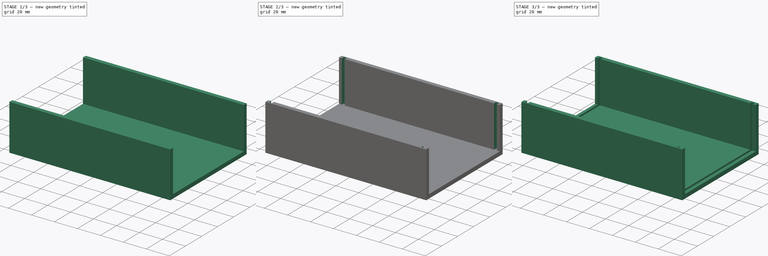
[diagram: build sequence overview — one tinted view per stage of 3, left to right]
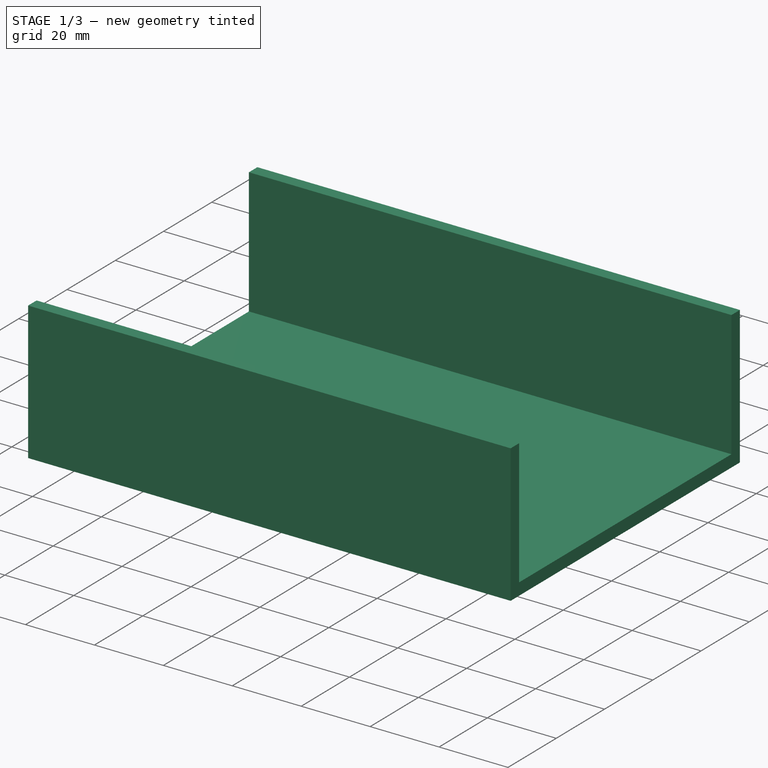
[diagram: stage 1 of 3 — iso view after this stage's code; geometry added in this stage tinted green]
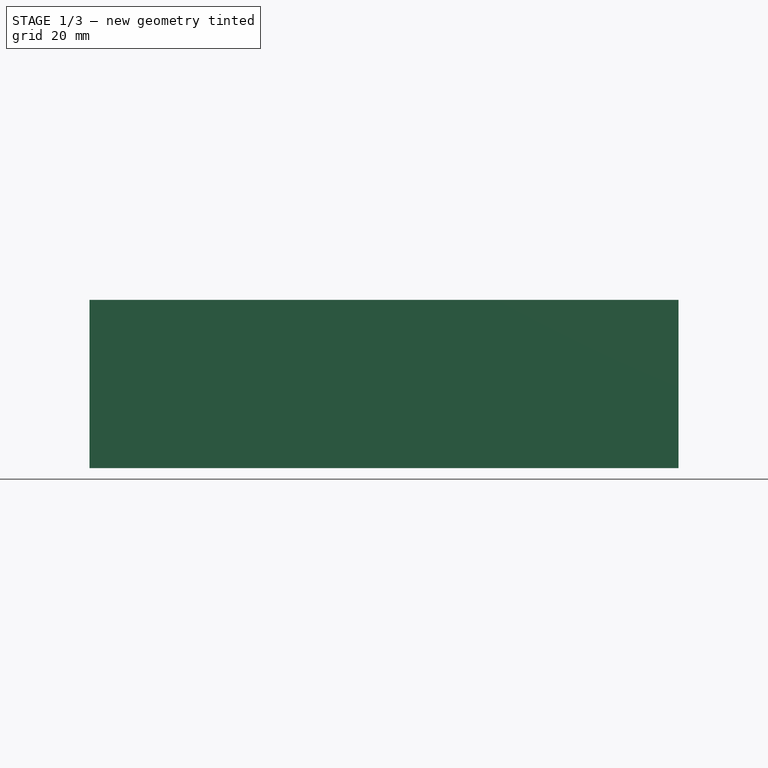
[diagram: stage 1 of 3 — front view after this stage's code; geometry added in this stage tinted green]
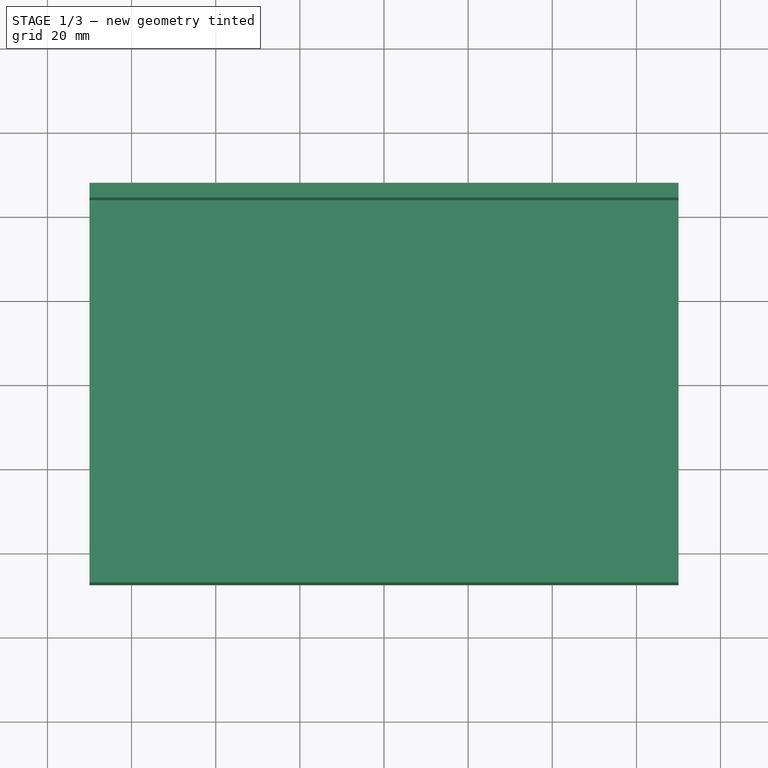
[diagram: stage 1 of 3 — top view after this stage's code; geometry added in this stage tinted green]
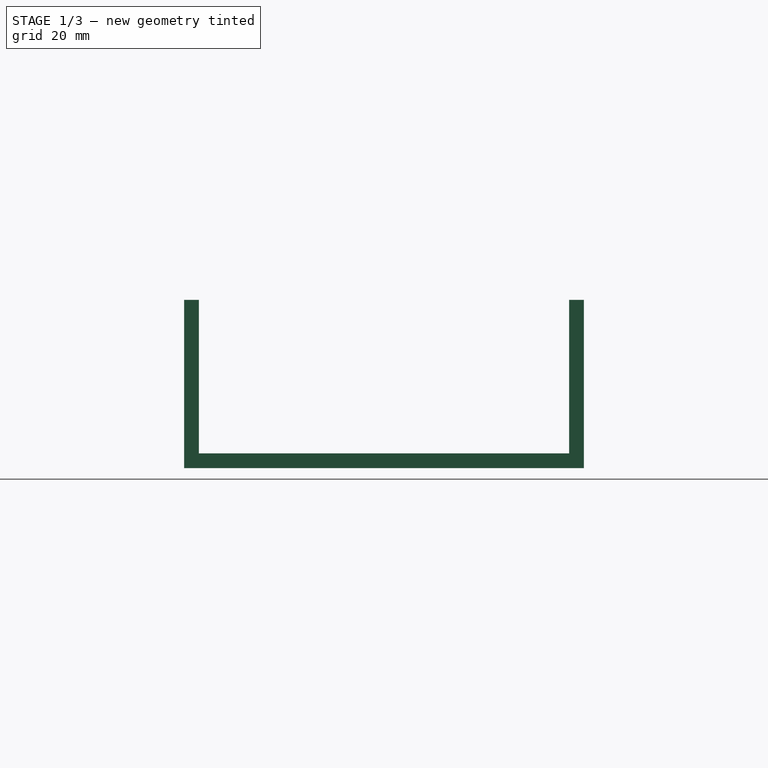
[diagram: stage 1 of 3 — right view after this stage's code; geometry added in this stage tinted green]
FCSTD DOCUMENT  (FreeCAD 0.20R29410 (Git))
Label: HotAirBox
License: All rights reserved
LicenseURL: http://en.wikipedia.org/wiki/All_rights_reserved
objects: Sketcher::SketchObject×6, PartDesign::Pad×4, PartDesign::Body×3, PartDesign::Pocket×2, App::Part×2, Spreadsheet::Sheet×1
note: 21 computed .brp shape members not serialized (recipe doc carries the construction recipe); baked Part::Feature solids carry a one-line shape summary decoded from their .brp

FEATURE [PartDesign::Body] Body002  label="BodyTop001"
  Group = -> [Sketch003,Pad001,Sketch005,Pocket]
  Origin = -> Origin004
  Tip = -> Pocket
FEATURE [App::Part] Part  label="Part_top"
  Group = -> [Body002]
  Origin = -> Origin
  Placement = pos=(145,0,0) rot=(0,0,1;0rad)
FEATURE [Sketcher::SketchObject] Sketch001  label="SketchBtmBase"
  FullyConstrained = true
  MapMode = 5
  Support = -> [XY_Plane003]
  expr: .Constraints.BoxLength = <<Measurements>>.BoxLength
  expr: .Constraints.BoxWith = <<Measurements>>.BoxWidth
  expr: Constraints[10] = <<Measurements>>.BoxWidth / 2
  expr: Constraints[11] = <<Measurements>>.BoxLength / 2
  sketch-geometry (4):
    g0: LineSegment StartX=-70 StartY=47.5 StartZ=0 EndX=70 EndY=47.5 EndZ=0
    g1: LineSegment StartX=-70 StartY=47.5 StartZ=0 EndX=-70 EndY=-47.5 EndZ=0
    g2: LineSegment StartX=70 StartY=47.5 StartZ=0 EndX=70 EndY=-47.5 EndZ=0
    g3: LineSegment StartX=-70 StartY=-47.5 StartZ=0 EndX=70 EndY=-47.5 EndZ=0
  constraints (12):
    c: Horizontal(g0)
    c: Vertical(g1)
    c: Vertical(g2)
    c: Horizontal(g3)
    c: Coincident(g0,g1)
    c: Coincident(g1,g3)
    c: Coincident(g3,g2)
    c: Coincident(g0,g2)
    c: DistanceX(g0,g0) = 140  'BoxLength'
    c: DistanceY(g1,g1) = 95  'BoxWith'
    c: DistanceY(g-1,g0) = 47.5
    c: DistanceX(g-1,g0) = 70
FEATURE [PartDesign::Pad] Pad002  label="Base"
  Direction = (0,0,1)
  Length = 3.5
  Length2 = 10
  Profile = -> Sketch001
  ReferenceAxis = -> Sketch001 [N_Axis]
  Reversed = true
  Type = 0
  expr: Length = <<Measurements>>.WallThickness
FEATURE [Sketcher::SketchObject] Sketch006
  FullyConstrained = true
  MapMode = 5
  Support = -> [XY_Plane003]
  expr: Constraints[10] = <<Measurements>>.BoxWidth / 2
  expr: Constraints[11] = <<Measurements>>.BoxLength / 2
  expr: Constraints[20] = <<Measurements>>.WallThickness
  expr: Constraints[21] = <<Measurements>>.BoxLength
  expr: Constraints[22] = <<Measurements>>.BoxLength / 2
  expr: Constraints[23] = <<Measurements>>.BoxWidth / 2
  expr: Constraints[8] = <<Measurements>>.BoxLength
  expr: Constraints[9] = <<Measurements>>.WallThickness
  sketch-geometry (8):
    g0: LineSegment StartX=-70 StartY=47.5 StartZ=0 EndX=70 EndY=47.5 EndZ=0
    g1: LineSegment StartX=70 StartY=47.5 StartZ=0 EndX=70 EndY=44 EndZ=0
    g2: LineSegment StartX=70 StartY=44 StartZ=0 EndX=-70 EndY=44 EndZ=0
    g3: LineSegment StartX=-70 StartY=44 StartZ=0 EndX=-70 EndY=47.5 EndZ=0
    g4: LineSegment StartX=-70 StartY=-47.5 StartZ=0 EndX=70 EndY=-47.5 EndZ=0
    g5: LineSegment StartX=70 StartY=-47.5 StartZ=0 EndX=70 EndY=-44 EndZ=0
    g6: LineSegment StartX=70 StartY=-44 StartZ=0 EndX=-70 EndY=-44 EndZ=0
    g7: LineSegment StartX=-70 StartY=-44 StartZ=0 EndX=-70 EndY=-47.5 EndZ=0
  constraints (24):
    c: Coincident(g0,g1)
    c: Coincident(g1,g2)
    c: Coincident(g2,g3)
    c: Coincident(g3,g0)
    c: Horizontal(g0)
    c: Horizontal(g2)
    c: Vertical(g1)
    c: Vertical(g3)
    c: DistanceX(g0,g0) = 140
    c: DistanceY(g3,g3) = 3.5
    c: DistanceY(g-1,g0) = 47.5
    c: DistanceX(g0,g-1) = 70
    c: Coincident(g4,g5)
    c: Coincident(g5,g6)
    c: Coincident(g6,g7)
    c: Coincident(g7,g4)
    c: Horizontal(g4)
    c: Horizontal(g6)
    c: Vertical(g5)
    c: Vertical(g7)
    c: DistanceY(g7,g7) = 3.5
    c: DistanceX(g4,g4) = 140
    c: DistanceX(g4,g-1) = 70
    c: DistanceY(g4,g-1) = 47.5
FEATURE [PartDesign::Pad] Pad003  label="Walls001"
  BaseFeature = -> Pad002
  Direction = (0,0,1)
  Length = 36.5
  Length2 = 10
  Profile = -> Sketch006
  ReferenceAxis = -> Sketch006 [N_Axis]
  Type = 0
  expr: Length = <<Measurements>>.BoxHeight / 2 - <<Measurements>>.WallThickness
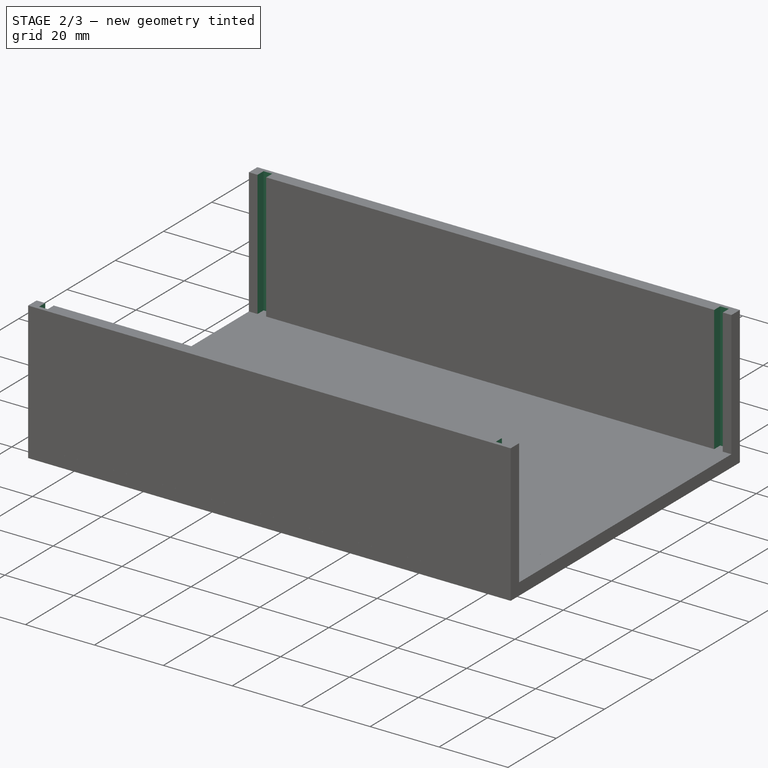
[diagram: stage 2 of 3 — iso view after this stage's code; geometry added in this stage tinted green]
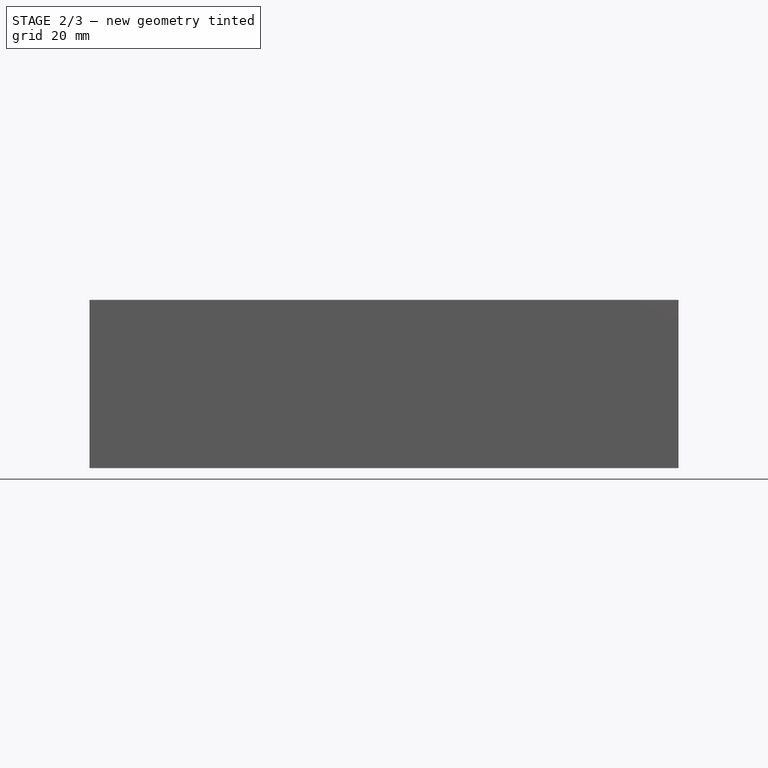
[diagram: stage 2 of 3 — front view after this stage's code; geometry added in this stage tinted green]
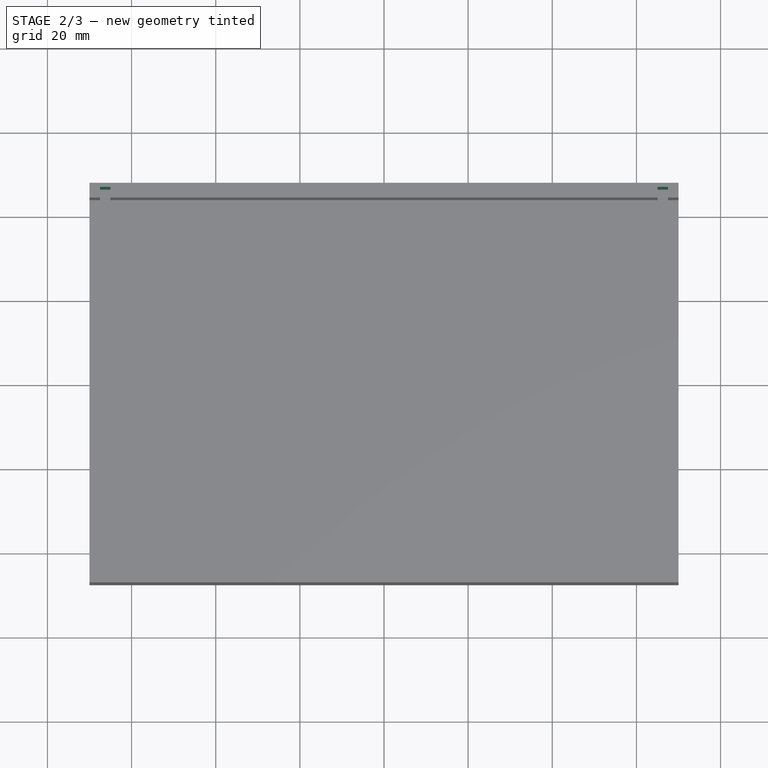
[diagram: stage 2 of 3 — top view after this stage's code; geometry added in this stage tinted green]
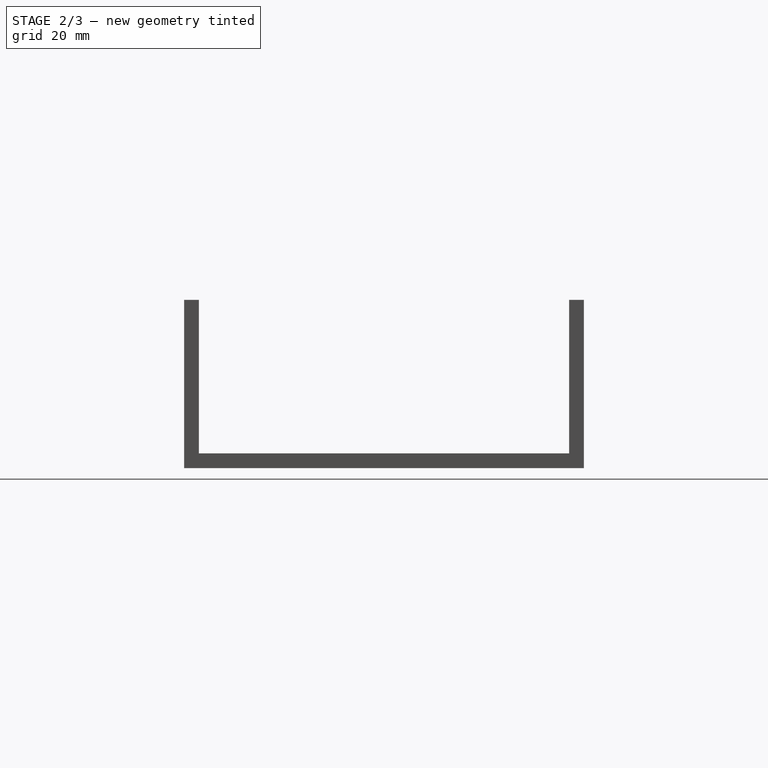
[diagram: stage 2 of 3 — right view after this stage's code; geometry added in this stage tinted green]
FEATURE [Sketcher::SketchObject] Sketch  label="SketchTopBase"
  FullyConstrained = true
  MapMode = 5
  Support = -> [XY_Plane001]
  expr: .Constraints.BoxLength = <<Measurements>>.BoxLength
  expr: .Constraints.BoxWith = <<Measurements>>.BoxWidth
  expr: Constraints[10] = <<Measurements>>.BoxWidth / 2
  expr: Constraints[11] = <<Measurements>>.BoxLength / 2
  sketch-geometry (4):
    g0: LineSegment StartX=-70 StartY=47.5 StartZ=0 EndX=70 EndY=47.5 EndZ=0
    g1: LineSegment StartX=-70 StartY=47.5 StartZ=0 EndX=-70 EndY=-47.5 EndZ=0
    g2: LineSegment StartX=70 StartY=47.5 StartZ=0 EndX=70 EndY=-47.5 EndZ=0
    g3: LineSegment StartX=-70 StartY=-47.5 StartZ=0 EndX=70 EndY=-47.5 EndZ=0
  constraints (12):
    c: Horizontal(g0)
    c: Vertical(g1)
    c: Vertical(g2)
    c: Horizontal(g3)
    c: Coincident(g0,g1)
    c: Coincident(g1,g3)
    c: Coincident(g3,g2)
    c: Coincident(g0,g2)
    c: DistanceX(g0,g0) = 140  'BoxLength'
    c: DistanceY(g1,g1) = 95  'BoxWith'
    c: DistanceY(g-1,g0) = 47.5
    c: DistanceX(g-1,g0) = 70
FEATURE [Spreadsheet::Sheet] Spreadsheet  label="Measurements"
  cells = A1=WallThickness; B1(WallThickness)=3.5; A2=PlateThickness; B2(PlateThickness)=2.5; A3=M3WallDia; B3(M3WallDia)=7; A4=M3HoleDia; B4(M3HoleDia)=3; A5=BoxLength; B5(BoxLength)=140; A6=BoxWidth; B6(BoxWidth)=95; A7=BoxHeight; B7(BoxHeight)=80; A8=PlateLength; B8(PlateLength)==BoxWidth - (WallThickness - PlateThickness) * 2; A9=PlateWidth; B9(PlateWidth)==BoxHeight - (WallThickness - PlateThickness + 1) * 2
FEATURE [PartDesign::Pad] Pad
  Direction = (0,0,1)
  Length = 3.5
  Length2 = 10
  Profile = -> Sketch
  ReferenceAxis = -> Sketch [N_Axis]
  Reversed = true
  Type = 0
  expr: Length = <<Measurements>>.WallThickness
FEATURE [Sketcher::SketchObject] Sketch007
  FullyConstrained = true
  MapMode = 5
  Placement = pos=(0,0,36.5) rot=(0,0,1;0rad)
  Support = -> [Pad003]
  expr: Constraints[10] = <<Measurements>>.BoxLength / 2 - <<Measurements>>.PlateThickness
  expr: Constraints[11] = <<Measurements>>.PlateLength / 2
  expr: Constraints[20] = <<Measurements>>.PlateThickness
  expr: Constraints[21] = <<Measurements>>.PlateLength
  expr: Constraints[22] = <<Measurements>>.BoxLength / 2 - <<Measurements>>.PlateThickness
  expr: Constraints[23] = <<Measurements>>.PlateLength / 2
  expr: Constraints[8] = <<Measurements>>.PlateThickness
  expr: Constraints[9] = <<Measurements>>.PlateLength
  sketch-geometry (8):
    g0: LineSegment StartX=-67.5 StartY=46.5 StartZ=0 EndX=-65 EndY=46.5 EndZ=0
    g1: LineSegment StartX=-65 StartY=46.5 StartZ=0 EndX=-65 EndY=-46.5 EndZ=0
    g2: LineSegment StartX=-65 StartY=-46.5 StartZ=0 EndX=-67.5 EndY=-46.5 EndZ=0
    g3: LineSegment StartX=-67.5 StartY=-46.5 StartZ=0 EndX=-67.5 EndY=46.5 EndZ=0
    g4: LineSegment StartX=67.5 StartY=46.5 StartZ=0 EndX=65 EndY=46.5 EndZ=0
    g5: LineSegment StartX=65 StartY=46.5 StartZ=0 EndX=65 EndY=-46.5 EndZ=0
    g6: LineSegment StartX=65 StartY=-46.5 StartZ=0 EndX=67.5 EndY=-46.5 EndZ=0
    g7: LineSegment StartX=67.5 StartY=-46.5 StartZ=0 EndX=67.5 EndY=46.5 EndZ=0
  constraints (24):
    c: Coincident(g0,g1)
    c: Coincident(g1,g2)
    c: Coincident(g2,g3)
    c: Coincident(g3,g0)
    c: Horizontal(g0)
    c: Horizontal(g2)
    c: Vertical(g1)
    c: Vertical(g3)
    c: DistanceX(g0,g0) = 2.5
    c: DistanceY(g3,g3) = 93
    c: DistanceX(g0,g-1) = 67.5
    c: DistanceY(g-1,g0) = 46.5
    c: Coincident(g4,g5)
    c: Coincident(g5,g6)
    c: Coincident(g6,g7)
    c: Coincident(g7,g4)
    c: Horizontal(g4)
    c: Horizontal(g6)
    c: Vertical(g5)
    c: Vertical(g7)
    c: DistanceX(g4,g4) = 2.5
    c: DistanceY(g7,g7) = 93
    c: DistanceX(g-1,g4) = 67.5
    c: DistanceY(g-1,g4) = 46.5
FEATURE [PartDesign::Pocket] Pocket001  label="PlateIndents001"
  BaseFeature = -> Pad003
  Direction = (0,0,-1)
  Length = 38
  Length2 = 5
  Profile = -> Sketch007
  ReferenceAxis = -> Sketch007 [N_Axis]
  Type = 0
  expr: Length = <<Measurements>>.PlateWidth / 2
FEATURE [PartDesign::Body] Body001  label="BodyBtm"
  Group = -> [Sketch001,Pad002,Sketch006,Pad003,Sketch007,Pocket001]
  Origin = -> Origin003
  Tip = -> Pocket001
FEATURE [App::Part] Part001  label="Part_btm"
  Group = -> [Body001]
  Origin = -> Origin002
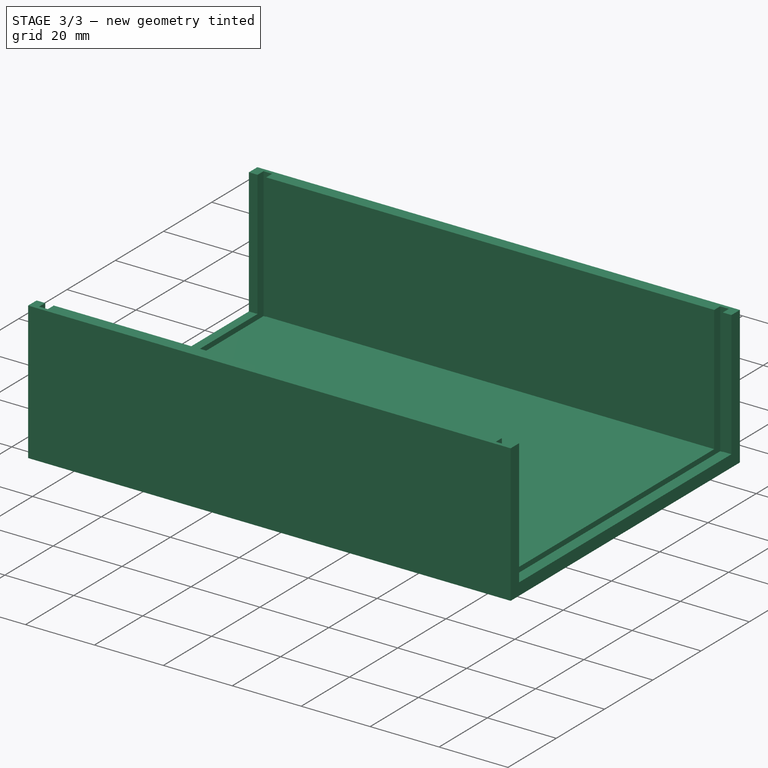
[diagram: stage 3 of 3 — iso view after this stage's code; geometry added in this stage tinted green]
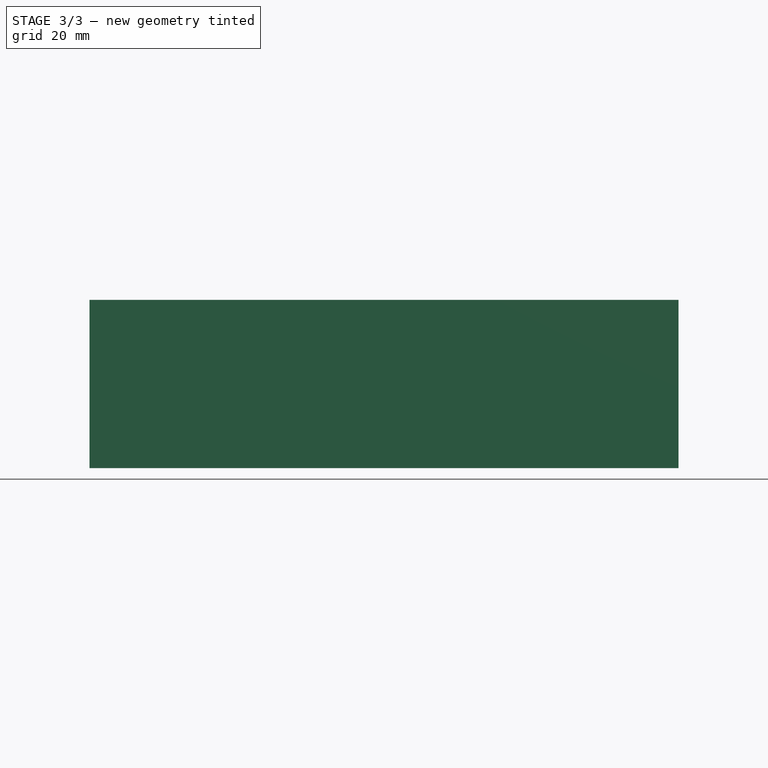
[diagram: stage 3 of 3 — front view after this stage's code; geometry added in this stage tinted green]
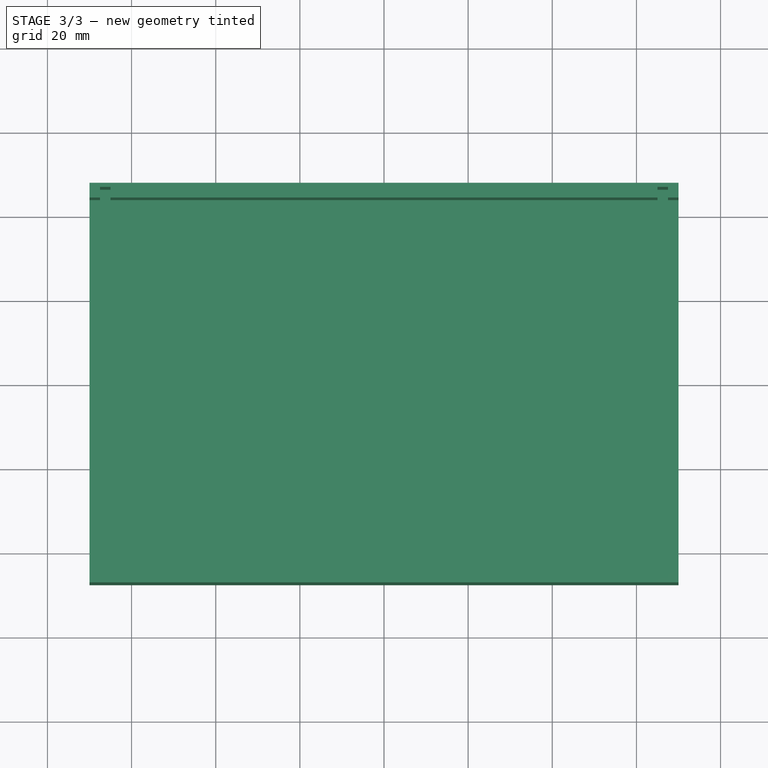
[diagram: stage 3 of 3 — top view after this stage's code; geometry added in this stage tinted green]
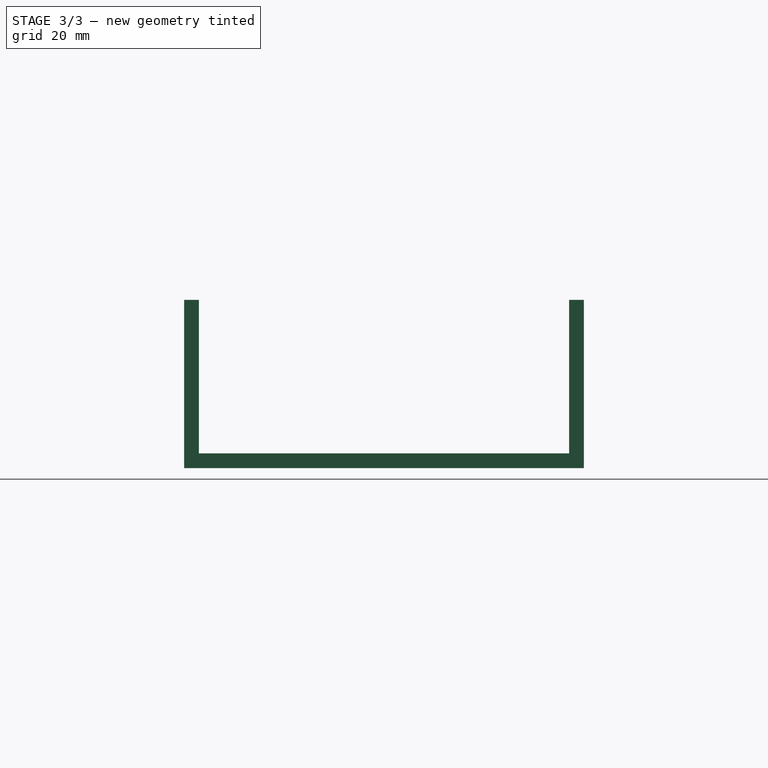
[diagram: stage 3 of 3 — right view after this stage's code; geometry added in this stage tinted green]
FEATURE [PartDesign::Body] Body  label="BodyTop"
  Group = -> [Sketch,Pad]
  Origin = -> Origin001
  Tip = -> Pad
FEATURE [Sketcher::SketchObject] Sketch003
  FullyConstrained = true
  MapMode = 2
  Support = -> [Body]
  expr: Constraints[17] = <<Measurements>>.BoxLength
  expr: Constraints[18] = <<Measurements>>.WallThickness
  expr: Constraints[19] = <<Measurements>>.BoxLength / 2
  expr: Constraints[20] = <<Measurements>>.BoxWidth / 2
  expr: Constraints[5] = <<Measurements>>.BoxLength
  expr: Constraints[6] = <<Measurements>>.WallThickness
  expr: Constraints[7] = <<Measurements>>.BoxWidth / 2
  expr: Constraints[8] = <<Measurements>>.BoxLength / 2
  sketch-geometry (8):
    g0: LineSegment StartX=-70 StartY=47.5 StartZ=0 EndX=70 EndY=47.5 EndZ=0
    g1: LineSegment StartX=-70 StartY=47.5 StartZ=0 EndX=-70 EndY=44 EndZ=0
    g2: LineSegment StartX=70 StartY=47.5 StartZ=0 EndX=70 EndY=44 EndZ=0
    g3: LineSegment StartX=-70 StartY=-47.5 StartZ=0 EndX=70 EndY=-47.5 EndZ=0
    g4: LineSegment StartX=-70 StartY=-47.5 StartZ=0 EndX=-70 EndY=-44 EndZ=0
    g5: LineSegment StartX=70 StartY=-47.5 StartZ=0 EndX=70 EndY=-44 EndZ=0
    g6: LineSegment StartX=-70 StartY=-44 StartZ=0 EndX=70 EndY=-44 EndZ=0
    g7: LineSegment StartX=-70 StartY=44 StartZ=0 EndX=70 EndY=44 EndZ=0
  constraints (24):
    c: Horizontal(g0)
    c: Coincident(g1,g0)
    c: Vertical(g1)
    c: Coincident(g2,g0)
    c: Vertical(g2)
    c: DistanceX(g0,g0) = 140
    c: DistanceY(g1,g1) = 3.5
    c: DistanceY(g-1,g0) = 47.5
    c: DistanceX(g0,g-1) = 70
    c: Horizontal(g3)
    c: Coincident(g4,g3)
    c: Vertical(g4)
    c: Coincident(g5,g3)
    c: Vertical(g5)
    c: Coincident(g6,g4)
    c: Coincident(g6,g5)
    c: Horizontal(g6)
    c: DistanceX(g3,g3) = 140
    c: DistanceY(g4,g4) = 3.5
    c: DistanceX(g3,g-1) = 70
    c: DistanceY(g3,g-1) = 47.5
    c: Horizontal(g7)
    c: Coincident(g7,g2)
    c: Coincident(g1,g7)
FEATURE [PartDesign::Pad] Pad001  label="Walls"
  Direction = (0,0,1)
  Length = 36.5
  Length2 = 10
  Profile = -> Sketch003
  ReferenceAxis = -> Sketch003 [N_Axis]
  Type = 0
  expr: Length = <<Measurements>>.BoxHeight / 2 - <<Measurements>>.WallThickness
FEATURE [Sketcher::SketchObject] Sketch005
  FullyConstrained = true
  MapMode = 5
  Placement = pos=(0,0,36.5) rot=(0,0,1;0rad)
  Support = -> [Pad001]
  expr: Constraints[10] = <<Measurements>>.PlateLength / 2
  expr: Constraints[20] = <<Measurements>>.BoxLength / 2 - <<Measurements>>.PlateThickness
  expr: Constraints[21] = <<Measurements>>.PlateLength / 2
  expr: Constraints[22] = <<Measurements>>.PlateThickness
  expr: Constraints[23] = <<Measurements>>.PlateLength
  expr: Constraints[7] = <<Measurements>>.PlateThickness
  expr: Constraints[8] = <<Measurements>>.PlateLength
  expr: Constraints[9] = <<Measurements>>.BoxLength / 2 - <<Measurements>>.PlateThickness
  sketch-geometry (8):
    g0: LineSegment StartX=-67.5 StartY=46.5 StartZ=0 EndX=-67.5 EndY=-46.5 EndZ=0
    g1: LineSegment StartX=-67.5 StartY=-46.5 StartZ=0 EndX=-65 EndY=-46.5 EndZ=0
    g2: LineSegment StartX=-65 StartY=-46.5 StartZ=0 EndX=-65 EndY=46.5 EndZ=0
    g3: LineSegment StartX=-65 StartY=46.5 StartZ=0 EndX=-67.5 EndY=46.5 EndZ=0
    g4: LineSegment StartX=67.5 StartY=46.5 StartZ=0 EndX=67.5 EndY=-46.5 EndZ=0
    g5: LineSegment StartX=67.5 StartY=-46.5 StartZ=0 EndX=65 EndY=-46.5 EndZ=0
    g6: LineSegment StartX=65 StartY=-46.5 StartZ=0 EndX=65 EndY=46.5 EndZ=0
    g7: LineSegment StartX=65 StartY=46.5 StartZ=0 EndX=67.5 EndY=46.5 EndZ=0
  constraints (24):
    c: Vertical(g0)
    c: Coincident(g1,g0)
    c: Horizontal(g1)
    c: Vertical(g2)
    c: Coincident(g3,g2)
    c: Coincident(g3,g0)
    c: Horizontal(g3)
    c: DistanceX(g3,g3) = 2.5
    c: DistanceY(g0,g0) = 93
    c: DistanceX(g0,g-1) = 67.5
    c: DistanceY(g-1,g2) = 46.5
    c: Coincident(g1,g2)
    c: Vertical(g4)
    c: Coincident(g5,g4)
    c: Horizontal(g5)
    c: Vertical(g6)
    c: Coincident(g7,g6)
    c: Coincident(g7,g4)
    c: Horizontal(g7)
    c: Coincident(g5,g6)
    c: DistanceX(g-1,g4) = 67.5
    c: DistanceY(g-1,g4) = 46.5
    c: DistanceX(g7,g7) = 2.5
    c: DistanceY(g4,g4) = 93
FEATURE [PartDesign::Pocket] Pocket  label="PlateIndents"
  BaseFeature = -> Pad001
  Direction = (0,0,-1)
  Length = 38
  Length2 = 5
  Profile = -> Sketch005
  ReferenceAxis = -> Sketch005 [N_Axis]
  Type = 0
  expr: Length = <<Measurements>>.PlateWidth / 2
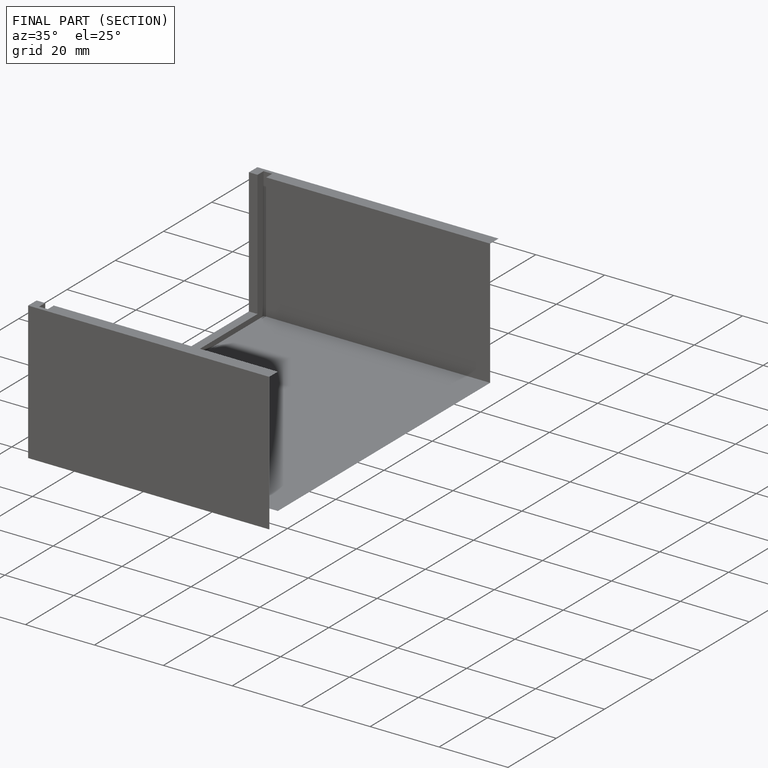
[diagram: finished part — half-section view (interior)]
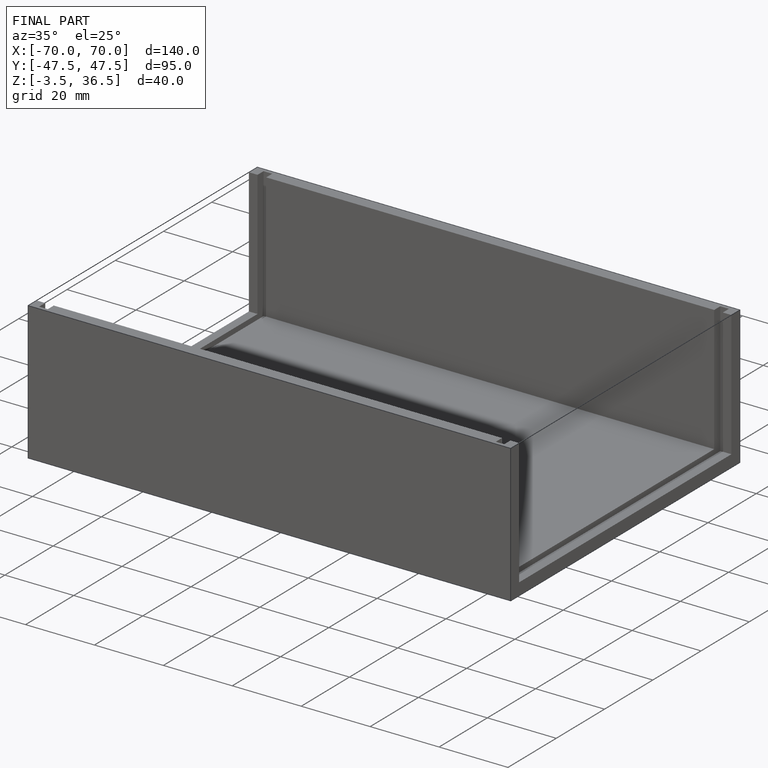
[diagram: finished part — iso view with bounding-box wireframe]
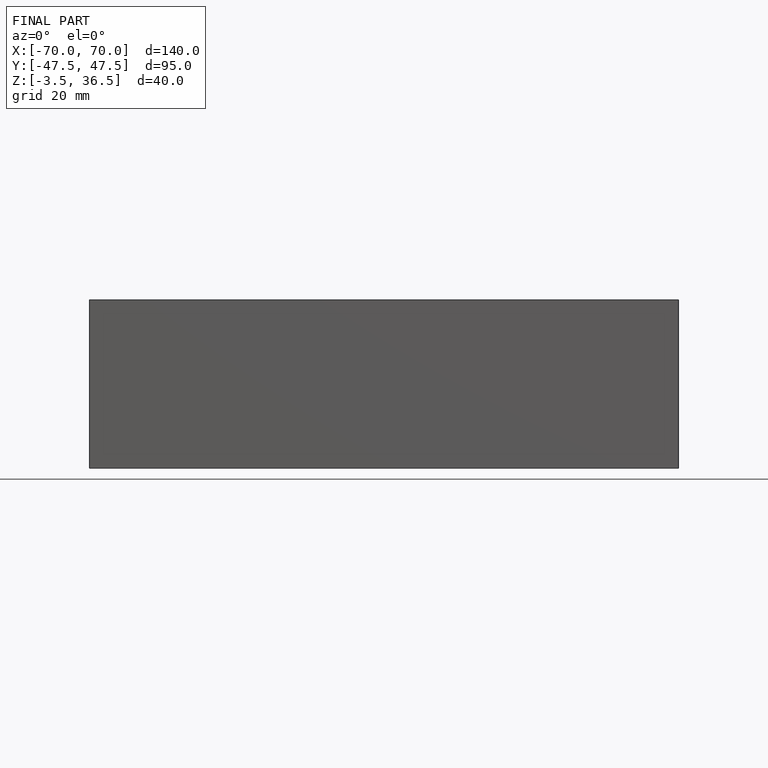
[diagram: finished part — front view with bounding-box wireframe]
